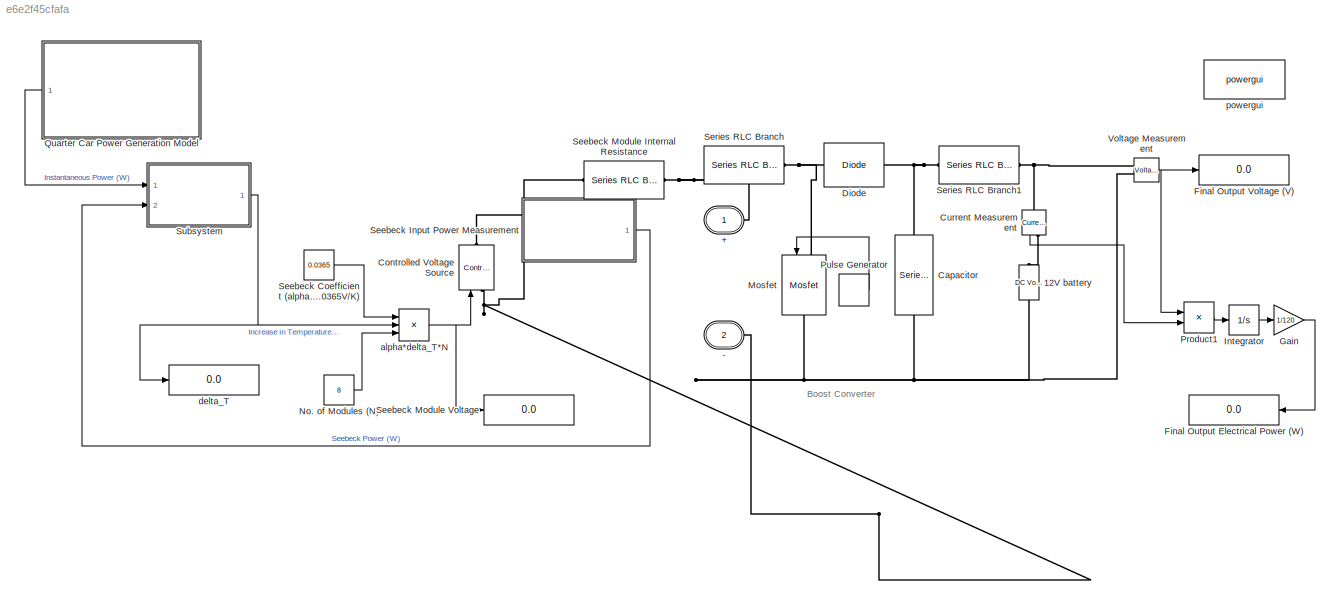
MODEL slx_e6e2f45cfafa
KIND model
CONFIG AbsTol = auto
CONFIG EnableMultiTasking = off
CONFIG FixedStep = auto
CONFIG MaxStep = auto
CONFIG MinStep = auto
CONFIG RelTol = 1e-3
CONFIG SampleTimeConstraint = Unconstrained
CONFIG Solver = VariableStepAuto
CONFIG SolverName = VariableStepAuto
CONFIG StartTime = 0.0
CONFIG StopTime = 10.0
BLOCK [PMIOPort] +
  NameLocation = top
  Side = Right
  Tag = PMCPort
BLOCK [PMIOPort] -
  NameLocation = top
  Port = 2
  Side = Right
  Tag = PMCPort
BLOCK [Reference] 12V battery  REF=powerlib/Electrical
Sources/DC Voltage Source
  NameLocation = right
  Ports = [0, 0, 0, 0, 0, 1, 1]
  SourceBlock = powerlib/Electrical\nSources/DC Voltage Source
  SourceProductBaseCode = PS
  SourceType = DC Voltage Source
BLOCK [Reference] Capacitor  REF=powerlib/Elements/Series RLC Branch
  NameLocation = right
  Ports = [0, 0, 0, 0, 0, 1, 1]
  SourceBlock = powerlib/Elements/Series RLC Branch
  SourceProductBaseCode = PS
  SourceType = Series RLC Branch
BLOCK [Reference] Controlled Voltage Source  REF=powerlib/Electrical
Sources/Controlled Voltage Source
  NameLocation = right
  Ports = [1, 0, 0, 0, 0, 1, 1]
  SourceBlock = powerlib/Electrical\nSources/Controlled Voltage Source
  SourceProductBaseCode = PS
  SourceType = Controlled Voltage Source
BLOCK [Reference] Current Measurement  REF=powerlib/Measurements/Current Measurement
  NameLocation = left
  Ports = [0, 1, 0, 0, 0, 1, 1]
  SourceBlock = powerlib/Measurements/Current Measurement
  SourceProductBaseCode = PS
  SourceType = Current Measurement
  UserDataPersistent = on
BLOCK [Reference] Diode  REF=powerlib/Power
Electronics/Diode
  Ports = [0, 0, 0, 0, 0, 1, 1]
  SourceBlock = powerlib/Power\nElectronics/Diode
  SourceProductBaseCode = PS
  SourceType = Diode
BLOCK [Display] Final Output Electrical Power (W)
  Decimation = 1
  NameLocation = top
  Ports = [1]
BLOCK [Display] Final Output Voltage (V)
  Decimation = 1
  Ports = [1]
BLOCK [Gain] Gain
  Gain = 1/120
BLOCK [Integrator] Integrator
  Ports = [1, 1]
BLOCK [Reference] Mosfet  REF=powerlib/Power
Electronics/Mosfet
  NameLocation = left
  Ports = [1, 0, 0, 0, 0, 1, 1]
  SourceBlock = powerlib/Power\nElectronics/Mosfet
  SourceProductBaseCode = PS
  SourceType = Mosfet
BLOCK [Constant] No. of Modules (N)
  Value = 8
BLOCK [Product] Product1
  Ports = [2, 1]
BLOCK [DiscretePulseGenerator] Pulse Generator
  Period = 3.2e-5
  Ports = [0, 1]
  PulseType = Time based
  PulseWidth = 91.6667
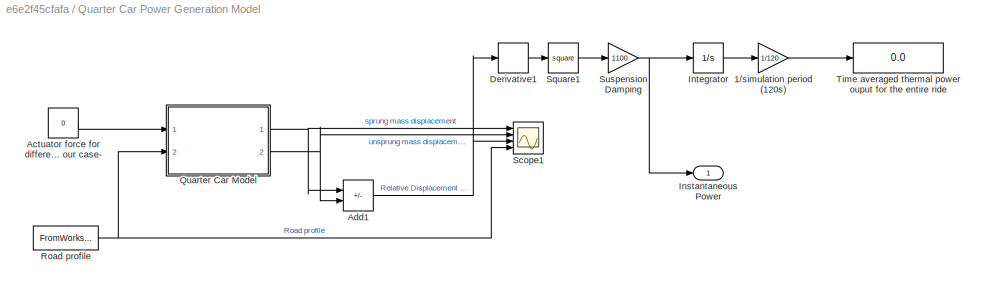
BLOCK [SubSystem] Quarter Car Power Generation Model
  NameLocation = top
  Ports = [0, 1]
  RequestExecContextInheritance = off
BLOCK [Gain] Quarter Car Power Generation Model/1//simulation period (120s)
  Gain = 1/120
BLOCK [Constant] Quarter Car Power Generation Model/Actuator force for different types of suspension -zero for our case- 
  Value = 0
BLOCK [Sum] Quarter Car Power Generation Model/Add1
  IconShape = rectangular
  Inputs = +-
  Ports = [2, 1]
BLOCK [Derivative] Quarter Car Power Generation Model/Derivative1
BLOCK [Outport] Quarter Car Power Generation Model/Instantaneous Power 
BLOCK [Integrator] Quarter Car Power Generation Model/Integrator
  Ports = [1, 1]
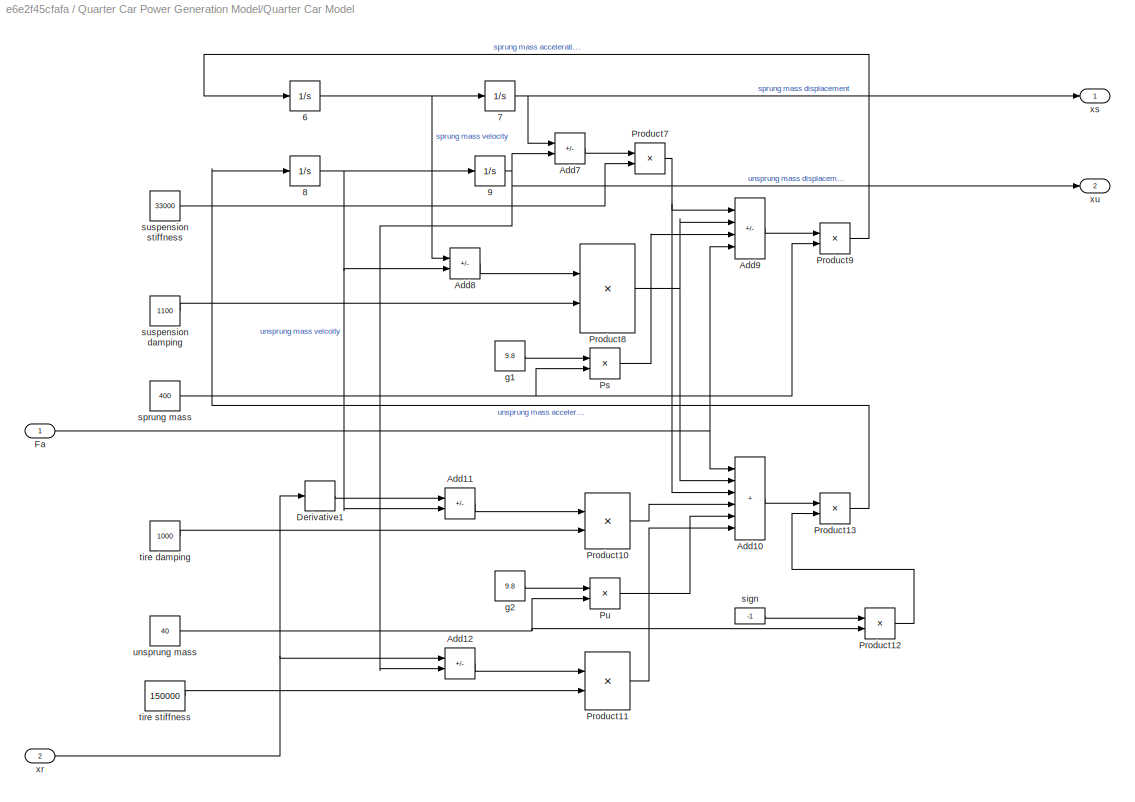
BLOCK [SubSystem] Quarter Car Power Generation Model/Quarter Car Model
  Ports = [2, 2]
  RequestExecContextInheritance = off
BLOCK [Integrator] Quarter Car Power Generation Model/Quarter Car Model/6
  Ports = [1, 1]
BLOCK [Integrator] Quarter Car Power Generation Model/Quarter Car Model/7
  Ports = [1, 1]
BLOCK [Integrator] Quarter Car Power Generation Model/Quarter Car Model/8
  Ports = [1, 1]
BLOCK [Integrator] Quarter Car Power Generation Model/Quarter Car Model/9
  Ports = [1, 1]
BLOCK [Sum] Quarter Car Power Generation Model/Quarter Car Model/Add10
  IconShape = rectangular
  Inputs = ++++++
  Ports = [6, 1]
BLOCK [Sum] Quarter Car Power Generation Model/Quarter Car Model/Add11
  IconShape = rectangular
  Inputs = -+
  Ports = [2, 1]
BLOCK [Sum] Quarter Car Power Generation Model/Quarter Car Model/Add12
  IconShape = rectangular
  Inputs = -+
  Ports = [2, 1]
BLOCK [Sum] Quarter Car Power Generation Model/Quarter Car Model/Add7
  IconShape = rectangular
  Inputs = -+
  Ports = [2, 1]
BLOCK [Sum] Quarter Car Power Generation Model/Quarter Car Model/Add8
  IconShape = rectangular
  Inputs = -+
  Ports = [2, 1]
BLOCK [Sum] Quarter Car Power Generation Model/Quarter Car Model/Add9
  IconShape = rectangular
  Inputs = ++-+
  Ports = [4, 1]
BLOCK [Derivative] Quarter Car Power Generation Model/Quarter Car Model/Derivative1
BLOCK [Inport] Quarter Car Power Generation Model/Quarter Car Model/Fa
BLOCK [Product] Quarter Car Power Generation Model/Quarter Car Model/Product10
  Ports = [2, 1]
BLOCK [Product] Quarter Car Power Generation Model/Quarter Car Model/Product11
  Ports = [2, 1]
BLOCK [Product] Quarter Car Power Generation Model/Quarter Car Model/Product12
  Ports = [2, 1]
BLOCK [Product] Quarter Car Power Generation Model/Quarter Car Model/Product13
  Inputs = */
  Ports = [2, 1]
BLOCK [Product] Quarter Car Power Generation Model/Quarter Car Model/Product7
  Ports = [2, 1]
BLOCK [Product] Quarter Car Power Generation Model/Quarter Car Model/Product8
  Ports = [2, 1]
BLOCK [Product] Quarter Car Power Generation Model/Quarter Car Model/Product9
  Inputs = */
  Ports = [2, 1]
BLOCK [Product] Quarter Car Power Generation Model/Quarter Car Model/Ps
  Ports = [2, 1]
BLOCK [Product] Quarter Car Power Generation Model/Quarter Car Model/Pu
  Ports = [2, 1]
BLOCK [Constant] Quarter Car Power Generation Model/Quarter Car Model/g1
  Value = 9.8
BLOCK [Constant] Quarter Car Power Generation Model/Quarter Car Model/g2
  Value = 9.8
BLOCK [Constant] Quarter Car Power Generation Model/Quarter Car Model/sign
  NameLocation = top
  Value = -1
BLOCK [Constant] Quarter Car Power Generation Model/Quarter Car Model/sprung mass
  Value = 400
BLOCK [Constant] Quarter Car Power Generation Model/Quarter Car Model/suspension damping
  Value = 1100
BLOCK [Constant] Quarter Car Power Generation Model/Quarter Car Model/suspension stiffness
  Value = 33000
BLOCK [Constant] Quarter Car Power Generation Model/Quarter Car Model/tire damping 
  Value = 1000
BLOCK [Constant] Quarter Car Power Generation Model/Quarter Car Model/tire stiffness
  Value = 150000
BLOCK [Constant] Quarter Car Power Generation Model/Quarter Car Model/unsprung mass
  Value = 40
BLOCK [Inport] Quarter Car Power Generation Model/Quarter Car Model/xr
  Port = 2
BLOCK [Outport] Quarter Car Power Generation Model/Quarter Car Model/xs
BLOCK [Outport] Quarter Car Power Generation Model/Quarter Car Model/xu
  Port = 2
BLOCK [FromWorkspace] Quarter Car Power Generation Model/Road profile
  VariableName = R
BLOCK [Scope] Quarter Car Power Generation Model/Scope1
  Floating = off
  NumInputPorts = 4
  Ports = [4]
  ScopeSpecificationString = Simulink.scopes.TimeScopeBlockCfg('CurrentConfiguration', extmgr.ConfigurationSet(extmgr.Configuration('Core','General UI',true),extmgr.Configuration('Core','Source UI',true),extmgr.Configuration('Sources','WiredSimulink',true,'DataLoggingVariableName','ScopeData2','DataLoggingSaveFormat','StructureWithTime','DataLoggingDecimation','1','DataLoggingDecimateData',true),extmgr.Configuration('Visuals'...<+3774ch>
BLOCK [Math] Quarter Car Power Generation Model/Square1
  Operator = square
  Ports = [1, 1]
BLOCK [Gain] Quarter Car Power Generation Model/Suspension Damping
  Gain = 1100
BLOCK [Display] Quarter Car Power Generation Model/Time averaged thermal power ouput for the entire ride 
  Decimation = 1
  Ports = [1]
BLOCK [Constant] Seebeck Coefficient (alpha=0.0365V//K)
  Value = 0.0365
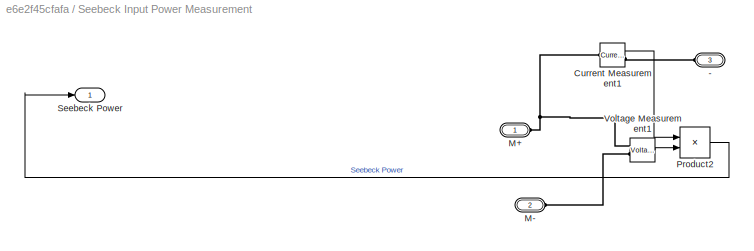
BLOCK [SubSystem] Seebeck Input Power Measurement 
  PortSchema = {"entries":[{"content":{"sides":[{"content":{"connectorIds":["LConn1","LConn2"]},"type":"ConnectorPlacement.EquallySpacedRectSide","uuid":"da9ecea4-fa10-45b5-a8cf-d5f181d74830"},{"content":{"connectorIds":["Out1"],"side":"RIGHT"},"type":"ConnectorPlacement.EquallySpacedRectSide","uuid":"87535208-3128-4425-91ba-3b63ced5399f"},{"content":{"connectorIds":["LConn3"],"side":"TOP"},"type":"ConnectorPlac...<+262ch>
  Ports = [0, 1, 0, 0, 0, 3]
  RequestExecContextInheritance = off
BLOCK [PMIOPort] Seebeck Input Power Measurement /-
  Port = 3
  Side = Left
BLOCK [Reference] Seebeck Input Power Measurement /Current Measurement1  REF=powerlib/Measurements/Current Measurement
  Ports = [0, 1, 0, 0, 0, 1, 1]
  SourceBlock = powerlib/Measurements/Current Measurement
  SourceProductBaseCode = PS
  SourceType = Current Measurement
  UserDataPersistent = on
BLOCK [PMIOPort] Seebeck Input Power Measurement /M+
  Side = Left
BLOCK [PMIOPort] Seebeck Input Power Measurement /M-
  Port = 2
  Side = Left
BLOCK [Product] Seebeck Input Power Measurement /Product2
  Ports = [2, 1]
BLOCK [Outport] Seebeck Input Power Measurement /Seebeck Power
BLOCK [Reference] Seebeck Input Power Measurement /Voltage Measurement1  REF=powerlib/Measurements/Voltage Measurement
  Ports = [0, 1, 0, 0, 0, 2]
  SourceBlock = powerlib/Measurements/Voltage Measurement
  SourceProductBaseCode = PS
  SourceType = Voltage Measurement
  UserDataPersistent = on
BLOCK [Reference] Seebeck Module Internal Resistance  REF=powerlib/Elements/Series RLC Branch
  NameLocation = top
  Ports = [0, 0, 0, 0, 0, 1, 1]
  SourceBlock = powerlib/Elements/Series RLC Branch
  SourceProductBaseCode = PS
  SourceType = Series RLC Branch
BLOCK [Display] Seebeck Module Voltage
  Decimation = 1
  Ports = [1]
BLOCK [Reference] Series RLC Branch  REF=powerlib/Elements/Series RLC Branch
  Ports = [0, 0, 0, 0, 0, 1, 1]
  SourceBlock = powerlib/Elements/Series RLC Branch
  SourceProductBaseCode = PS
  SourceType = Series RLC Branch
BLOCK [Reference] Series RLC Branch1  REF=powerlib/Elements/Series RLC Branch
  Ports = [0, 0, 0, 0, 0, 1, 1]
  SourceBlock = powerlib/Elements/Series RLC Branch
  SourceProductBaseCode = PS
  SourceType = Series RLC Branch
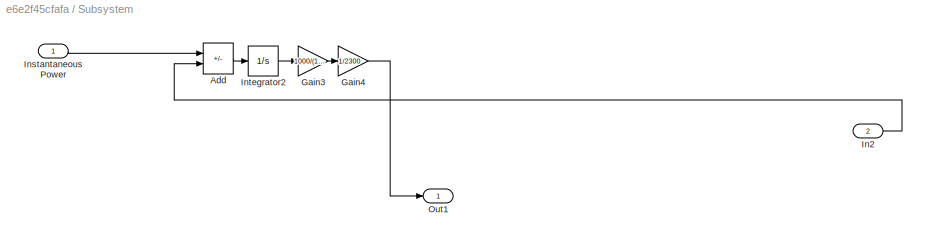
BLOCK [SubSystem] Subsystem
  Ports = [2, 1]
  RequestExecContextInheritance = off
BLOCK [Sum] Subsystem/Add
  IconShape = rectangular
  Inputs = +-
  Ports = [2, 1]
BLOCK [Gain] Subsystem/Gain3
  Gain = 1000/(150*0.87)
BLOCK [Gain] Subsystem/Gain4
  Gain = 1/2300
BLOCK [Inport] Subsystem/In2
  Port = 2
BLOCK [Inport] Subsystem/Instantaneous Power
BLOCK [Integrator] Subsystem/Integrator2
  Ports = [1, 1]
BLOCK [Outport] Subsystem/Out1
BLOCK [Reference] Voltage Measurement  REF=powerlib/Measurements/Voltage Measurement
  Ports = [0, 1, 0, 0, 0, 2]
  SourceBlock = powerlib/Measurements/Voltage Measurement
  SourceProductBaseCode = PS
  SourceType = Voltage Measurement
  UserDataPersistent = on
BLOCK [Product] alpha*delta_T*N
  Inputs = 3
  Ports = [3, 1]
BLOCK [Display] delta_T
  Decimation = 1
  Ports = [1]
BLOCK [Reference] powergui  REF=powerlib/powergui
  Ports = []
  Priority = 1
  SourceBlock = powerlib/powergui
  SourceProductBaseCode = PS
  SourceType = PSB option menu block
ANNOTATION (root): Boost Converter
LINE Current Measurement:1 -> Product1:2
LINE Gain:1 -> Final Output Electrical Power (W):1
LINE Integrator:1 -> Gain:1
LINE No. of Modules (N):1 -> alpha*delta_T*N:3
LINE Product1:1 -> Integrator:1
LINE Pulse Generator:1 -> Mosfet:1
LINE Quarter Car Power Generation Model/1//simulation period (120s):1 -> Quarter Car Power Generation Model/Time averaged thermal power ouput for the entire ride :1
LINE Quarter Car Power Generation Model/Actuator force for different types of suspension -zero for our case- :1 -> Quarter Car Power Generation Model/Quarter Car Model:1
NET Quarter Car Power Generation Model/Add1:1 -> Quarter Car Power Generation Model/Derivative1:1, Quarter Car Power Generation Model/Scope1:3
LINE Quarter Car Power Generation Model/Derivative1:1 -> Quarter Car Power Generation Model/Square1:1
LINE Quarter Car Power Generation Model/Integrator:1 -> Quarter Car Power Generation Model/1//simulation period (120s):1
NET Quarter Car Power Generation Model/Quarter Car Model/6:1 -> Quarter Car Power Generation Model/Quarter Car Model/7:1, Quarter Car Power Generation Model/Quarter Car Model/Add8:1
NET Quarter Car Power Generation Model/Quarter Car Model/7:1 -> Quarter Car Power Generation Model/Quarter Car Model/Add7:1, Quarter Car Power Generation Model/Quarter Car Model/xs:1
NET Quarter Car Power Generation Model/Quarter Car Model/8:1 -> Quarter Car Power Generation Model/Quarter Car Model/9:1, Quarter Car Power Generation Model/Quarter Car Model/Add11:2, Quarter Car Power Generation Model/Quarter Car Model/Add8:2
NET Quarter Car Power Generation Model/Quarter Car Model/9:1 -> Quarter Car Power Generation Model/Quarter Car Model/Add12:2, Quarter Car Power Generation Model/Quarter Car Model/Add7:2, Quarter Car Power Generation Model/Quarter Car Model/xu:1
LINE Quarter Car Power Generation Model/Quarter Car Model/Add10:1 -> Quarter Car Power Generation Model/Quarter Car Model/Product13:1
LINE Quarter Car Power Generation Model/Quarter Car Model/Add11:1 -> Quarter Car Power Generation Model/Quarter Car Model/Product10:1
LINE Quarter Car Power Generation Model/Quarter Car Model/Add12:1 -> Quarter Car Power Generation Model/Quarter Car Model/Product11:1
LINE Quarter Car Power Generation Model/Quarter Car Model/Add7:1 -> Quarter Car Power Generation Model/Quarter Car Model/Product7:1
LINE Quarter Car Power Generation Model/Quarter Car Model/Add8:1 -> Quarter Car Power Generation Model/Quarter Car Model/Product8:1
LINE Quarter Car Power Generation Model/Quarter Car Model/Add9:1 -> Quarter Car Power Generation Model/Quarter Car Model/Product9:1
LINE Quarter Car Power Generation Model/Quarter Car Model/Derivative1:1 -> Quarter Car Power Generation Model/Quarter Car Model/Add11:1
NET Quarter Car Power Generation Model/Quarter Car Model/Fa:1 -> Quarter Car Power Generation Model/Quarter Car Model/Add10:1, Quarter Car Power Generation Model/Quarter Car Model/Add9:4
LINE Quarter Car Power Generation Model/Quarter Car Model/Product10:1 -> Quarter Car Power Generation Model/Quarter Car Model/Add10:4
LINE Quarter Car Power Generation Model/Quarter Car Model/Product11:1 -> Quarter Car Power Generation Model/Quarter Car Model/Add10:6
LINE Quarter Car Power Generation Model/Quarter Car Model/Product12:1 -> Quarter Car Power Generation Model/Quarter Car Model/Product13:2
LINE Quarter Car Power Generation Model/Quarter Car Model/Product13:1 -> Quarter Car Power Generation Model/Quarter Car Model/8:1
NET Quarter Car Power Generation Model/Quarter Car Model/Product7:1 -> Quarter Car Power Generation Model/Quarter Car Model/Add10:3, Quarter Car Power Generation Model/Quarter Car Model/Add9:1
NET Quarter Car Power Generation Model/Quarter Car Model/Product8:1 -> Quarter Car Power Generation Model/Quarter Car Model/Add10:2, Quarter Car Power Generation Model/Quarter Car Model/Add9:2
LINE Quarter Car Power Generation Model/Quarter Car Model/Product9:1 -> Quarter Car Power Generation Model/Quarter Car Model/6:1
LINE Quarter Car Power Generation Model/Quarter Car Model/Ps:1 -> Quarter Car Power Generation Model/Quarter Car Model/Add9:3
LINE Quarter Car Power Generation Model/Quarter Car Model/Pu:1 -> Quarter Car Power Generation Model/Quarter Car Model/Add10:5
LINE Quarter Car Power Generation Model/Quarter Car Model/g1:1 -> Quarter Car Power Generation Model/Quarter Car Model/Ps:1
LINE Quarter Car Power Generation Model/Quarter Car Model/g2:1 -> Quarter Car Power Generation Model/Quarter Car Model/Pu:1
LINE Quarter Car Power Generation Model/Quarter Car Model/sign:1 -> Quarter Car Power Generation Model/Quarter Car Model/Product12:1
NET Quarter Car Power Generation Model/Quarter Car Model/sprung mass:1 -> Quarter Car Power Generation Model/Quarter Car Model/Product9:2, Quarter Car Power Generation Model/Quarter Car Model/Ps:2
LINE Quarter Car Power Generation Model/Quarter Car Model/suspension damping:1 -> Quarter Car Power Generation Model/Quarter Car Model/Product8:2
LINE Quarter Car Power Generation Model/Quarter Car Model/suspension stiffness:1 -> Quarter Car Power Generation Model/Quarter Car Model/Product7:2
LINE Quarter Car Power Generation Model/Quarter Car Model/tire damping :1 -> Quarter Car Power Generation Model/Quarter Car Model/Product10:2
LINE Quarter Car Power Generation Model/Quarter Car Model/tire stiffness:1 -> Quarter Car Power Generation Model/Quarter Car Model/Product11:2
NET Quarter Car Power Generation Model/Quarter Car Model/unsprung mass:1 -> Quarter Car Power Generation Model/Quarter Car Model/Product12:2, Quarter Car Power Generation Model/Quarter Car Model/Pu:2
NET Quarter Car Power Generation Model/Quarter Car Model/xr:1 -> Quarter Car Power Generation Model/Quarter Car Model/Add12:1, Quarter Car Power Generation Model/Quarter Car Model/Derivative1:1
NET Quarter Car Power Generation Model/Quarter Car Model:1 -> Quarter Car Power Generation Model/Add1:1, Quarter Car Power Generation Model/Scope1:1
NET Quarter Car Power Generation Model/Quarter Car Model:2 -> Quarter Car Power Generation Model/Add1:2, Quarter Car Power Generation Model/Scope1:2
NET Quarter Car Power Generation Model/Road profile:1 -> Quarter Car Power Generation Model/Quarter Car Model:2, Quarter Car Power Generation Model/Scope1:4
LINE Quarter Car Power Generation Model/Square1:1 -> Quarter Car Power Generation Model/Suspension Damping:1
NET Quarter Car Power Generation Model/Suspension Damping:1 -> Quarter Car Power Generation Model/Instantaneous Power :1, Quarter Car Power Generation Model/Integrator:1
LINE Quarter Car Power Generation Model:1 -> Subsystem:1
LINE Seebeck Coefficient (alpha=0.0365V//K):1 -> alpha*delta_T*N:1
LINE Seebeck Input Power Measurement /Current Measurement1:1 -> Seebeck Input Power Measurement /Product2:1
LINE Seebeck Input Power Measurement /Product2:1 -> Seebeck Input Power Measurement /Seebeck Power:1
LINE Seebeck Input Power Measurement /Voltage Measurement1:1 -> Seebeck Input Power Measurement /Product2:2
LINE Seebeck Input Power Measurement :1 -> Subsystem:2
LINE Subsystem/Add:1 -> Subsystem/Integrator2:1
LINE Subsystem/Gain3:1 -> Subsystem/Gain4:1
LINE Subsystem/Gain4:1 -> Subsystem/Out1:1
LINE Subsystem/In2:1 -> Subsystem/Add:2
LINE Subsystem/Instantaneous Power:1 -> Subsystem/Add:1
LINE Subsystem/Integrator2:1 -> Subsystem/Gain3:1
NET Subsystem:1 -> alpha*delta_T*N:2, delta_T:1
NET Voltage Measurement:1 -> Final Output Voltage (V):1, Product1:1
NET alpha*delta_T*N:1 -> Controlled Voltage Source:1, Seebeck Module Voltage:1
PNET net1: +:RConn1 -- Seebeck Module Internal Resistance:RConn1 -- Series RLC Branch:LConn1
PNET net2: -:RConn1 -- 12V battery:LConn1 -- Capacitor:LConn1 -- Controlled Voltage Source:LConn1 -- Mosfet:RConn1 -- Seebeck Input Power Measurement :LConn2 -- Voltage Measurement:LConn2
PLINE 12V battery:RConn1 -- Current Measurement:RConn1
PNET net3: Capacitor:RConn1 -- Diode:RConn1 -- Series RLC Branch1:LConn1
PLINE Controlled Voltage Source:RConn1 -- Seebeck Input Power Measurement :LConn1
PNET net4: Current Measurement:LConn1 -- Series RLC Branch1:RConn1 -- Voltage Measurement:LConn1
PNET net5: Diode:LConn1 -- Mosfet:LConn1 -- Series RLC Branch:RConn1
PLINE Seebeck Input Power Measurement /-:RConn1 -- Seebeck Input Power Measurement /Current Measurement1:RConn1
PNET net6: Seebeck Input Power Measurement /Current Measurement1:LConn1 -- Seebeck Input Power Measurement /M+:RConn1 -- Seebeck Input Power Measurement /Voltage Measurement1:LConn1
PLINE Seebeck Input Power Measurement /M-:RConn1 -- Seebeck Input Power Measurement /Voltage Measurement1:LConn2
PLINE Seebeck Input Power Measurement :LConn3 -- Seebeck Module Internal Resistance:LConn1
note: NET lines group one-source signal fan-out (src -> all destinations, sorted); 1:1 wires keep LINE; PNET lines group multi-terminal physical nets as a canonical sorted terminal list (undirected conserving connections); 2-terminal nets keep the pairwise PLINE form
